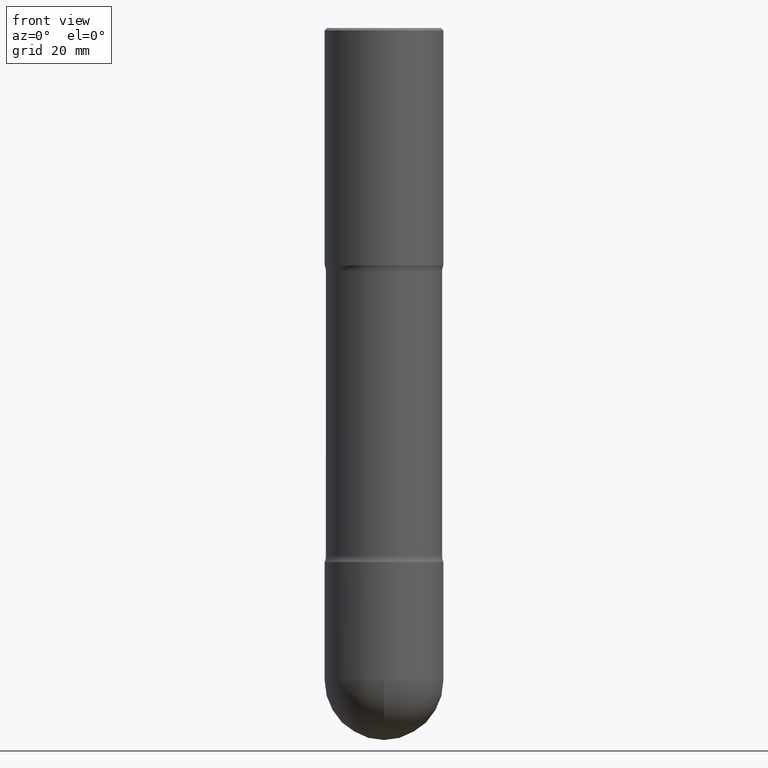
[diagram: clean part render]
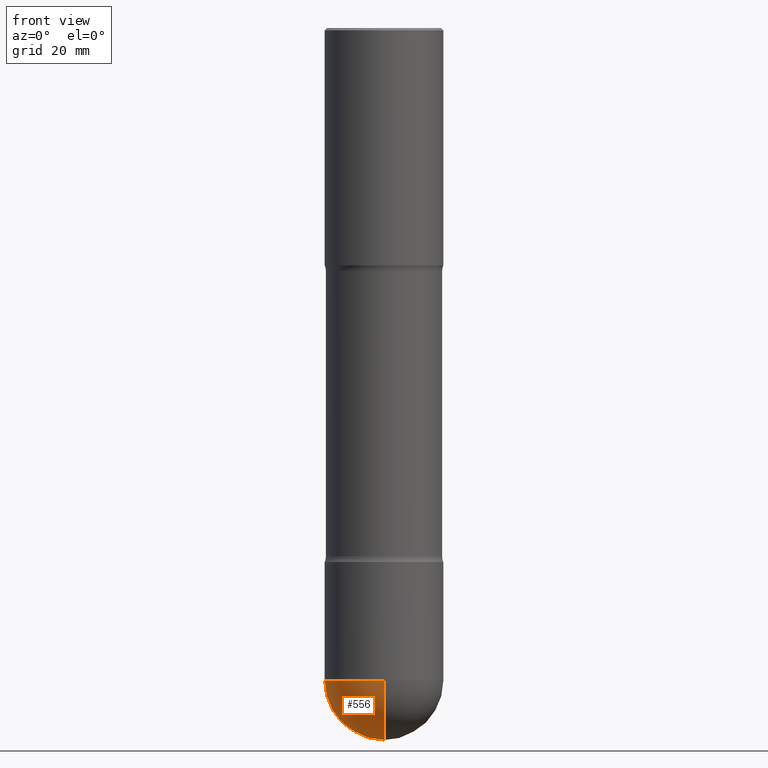
[diagram: same view with one face highlighted and labeled with its STEP entity id]
A machine part, front view. The second image highlights one B-rep face of the part: STEP entity #556.
In plain terms, the highlighted spherical surface has radius 12.7 mm.
Its self-contained STEP definition (entity closure, byte-faithful):
#2 = DIRECTION ( 'NONE',  ( 1.000000000000000000, -6.982962677686265922E-15, 4.883557194083112340E-29 ) ) ;
#10 = VERTEX_POINT ( 'NONE', #137 ) ;
#40 = DIRECTION ( 'NONE',  ( 1.000000000000000000, -6.982962677686268288E-15, 0.000000000000000000 ) ) ;
#55 = CIRCLE ( 'NONE', #213, 0.4999999999999987788 ) ;
#87 = AXIS2_PLACEMENT_3D ( 'NONE', #140, #274, #260 ) ;
#124 = CIRCLE ( 'NONE', #346, 0.4999999999999990563 ) ;
#127 = VERTEX_POINT ( 'NONE', #533 ) ;
#128 = EDGE_CURVE ( 'NONE', #531, #10, #124, .T. ) ;
#132 = CARTESIAN_POINT ( 'NONE',  ( 1.340732011955928297E-28, -1.926437970359467045E-14, -5.500000000000000888 ) ) ;
#137 = CARTESIAN_POINT ( 'NONE',  ( -3.552713678800358146E-15, -0.5000000000000182077, -5.499999999999999112 ) ) ;
#140 = CARTESIAN_POINT ( 'NONE',  ( 1.340732011955928297E-28, -1.926437970359467045E-14, -5.500000000000000888 ) ) ;
#168 = DIRECTION ( 'NONE',  ( -2.445468806185136597E-29, 3.491481338843145583E-15, 1.000000000000000000 ) ) ;
#179 = FACE_OUTER_BOUND ( 'NONE', #485, .T. ) ;
#182 = ORIENTED_EDGE ( 'NONE', *, *, #337, .T. ) ;
#188 = CARTESIAN_POINT ( 'NONE',  ( 1.345007843401825128E-28, -1.920314736363730603E-14, -5.500000000000000888 ) ) ;
#211 = EDGE_CURVE ( 'NONE', #317, #127, #55, .T. ) ;
#213 = AXIS2_PLACEMENT_3D ( 'NONE', #296, #2, #251 ) ;
#226 = CARTESIAN_POINT ( 'NONE',  ( 1.465143367988133318E-28, -2.097950420303755649E-14, -5.999999999999999112 ) ) ;
#237 = DIRECTION ( 'NONE',  ( 1.000000000000000000, -6.982962677686268288E-15, 0.000000000000000000 ) ) ;
#248 = ORIENTED_EDGE ( 'NONE', *, *, #211, .F. ) ;
#251 = DIRECTION ( 'NONE',  ( 6.982962677686265922E-15, 1.000000000000000000, 0.000000000000000000 ) ) ;
#260 = DIRECTION ( 'NONE',  ( -7.105427357601001070E-15, -1.000000000000000000, 0.000000000000000000 ) ) ;
#274 = DIRECTION ( 'NONE',  ( -1.000000000000000000, 7.105427357601001070E-15, -4.926315508542082329E-29 ) ) ;
#296 = CARTESIAN_POINT ( 'NONE',  ( 1.340732011955928297E-28, -1.926437970359467045E-14, -5.500000000000000888 ) ) ;
#305 = DIRECTION ( 'NONE',  ( -1.000000000000000000, 6.982962677686265922E-15, -4.883557194083112901E-29 ) ) ;
#317 = VERTEX_POINT ( 'NONE', #226 ) ;
#337 = EDGE_CURVE ( 'NONE', #317, #10, #347, .T. ) ;
#341 = EDGE_CURVE ( 'NONE', #127, #531, #426, .T. ) ;
#346 = AXIS2_PLACEMENT_3D ( 'NONE', #188, #168, #40 ) ;
#347 = CIRCLE ( 'NONE', #87, 0.4999999999999987788 ) ;
#364 = ORIENTED_EDGE ( 'NONE', *, *, #341, .F. ) ;
#380 = ORIENTED_EDGE ( 'NONE', *, *, #128, .F. ) ;
#404 = CARTESIAN_POINT ( 'NONE',  ( 1.345007843401825128E-28, -1.920314736363730603E-14, -5.500000000000000888 ) ) ;
#426 = CIRCLE ( 'NONE', #435, 0.4999999999999990563 ) ;
#435 = AXIS2_PLACEMENT_3D ( 'NONE', #404, #448, #237 ) ;
#446 = CARTESIAN_POINT ( 'NONE',  ( -0.4999999999999990563, -1.390469301541524158E-14, -5.500000000000000888 ) ) ;
#448 = DIRECTION ( 'NONE',  ( -2.445468806185136597E-29, 3.491481338843145583E-15, 1.000000000000000000 ) ) ;
#468 = AXIS2_PLACEMENT_3D ( 'NONE', #132, #305, #484 ) ;
#484 = DIRECTION ( 'NONE',  ( 6.982962677686265922E-15, 1.000000000000000000, -4.370956789862832194E-15 ) ) ;
#485 = EDGE_LOOP ( 'NONE', ( #248, #182, #380, #364 ) ) ;
#531 = VERTEX_POINT ( 'NONE', #446 ) ;
#533 = CARTESIAN_POINT ( 'NONE',  ( 3.491481338843259573E-15, 0.4999999999999796274, -5.500000000000002665 ) ) ;
#536 = SPHERICAL_SURFACE ( 'NONE', #468, 0.4999999999999987788 ) ;
#556 = ADVANCED_FACE ( 'NONE', ( #179 ), #536, .T. ) ;